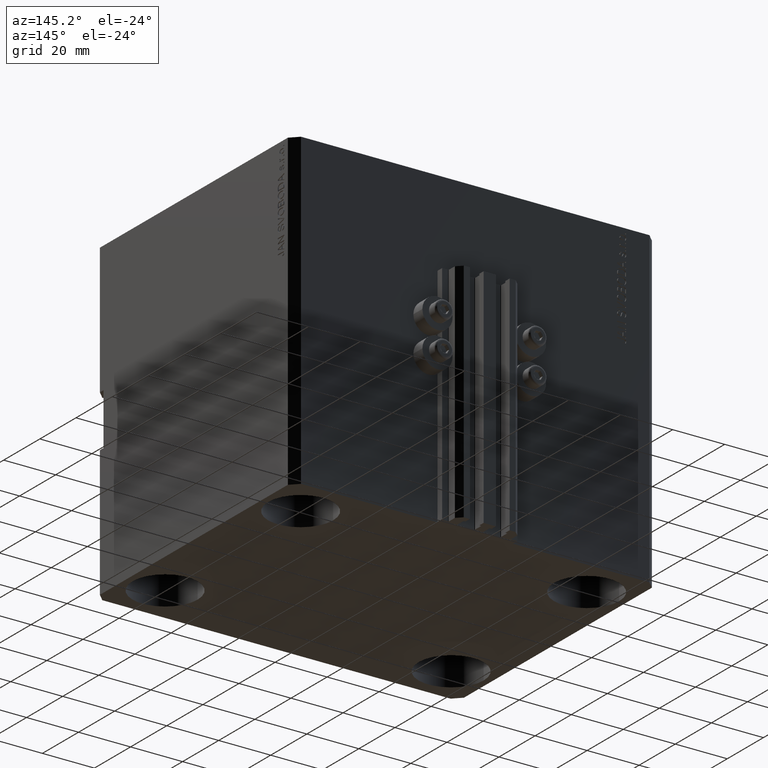
[diagram: clean part render]
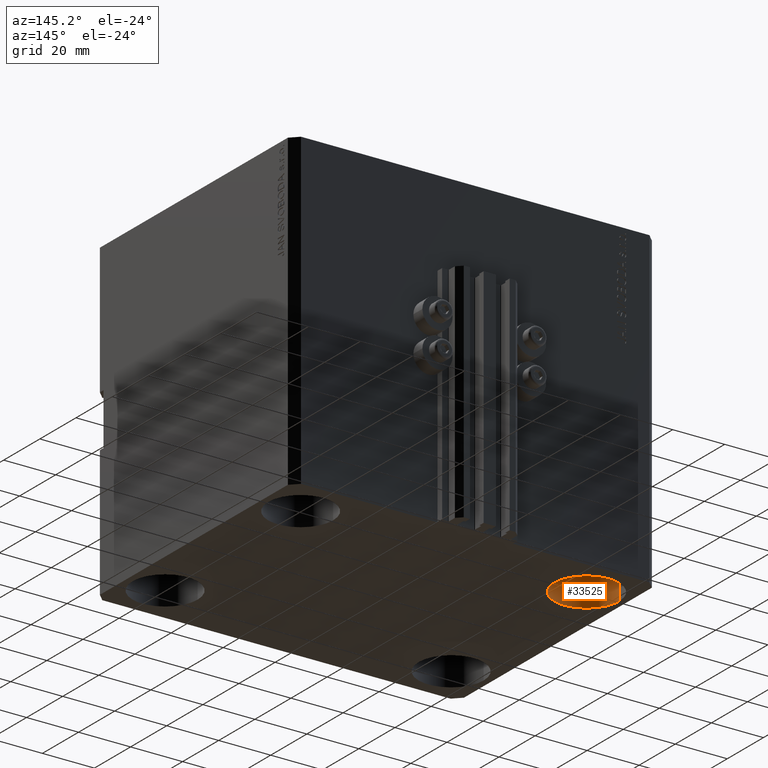
[diagram: same view with one face highlighted and labeled with its STEP entity id]
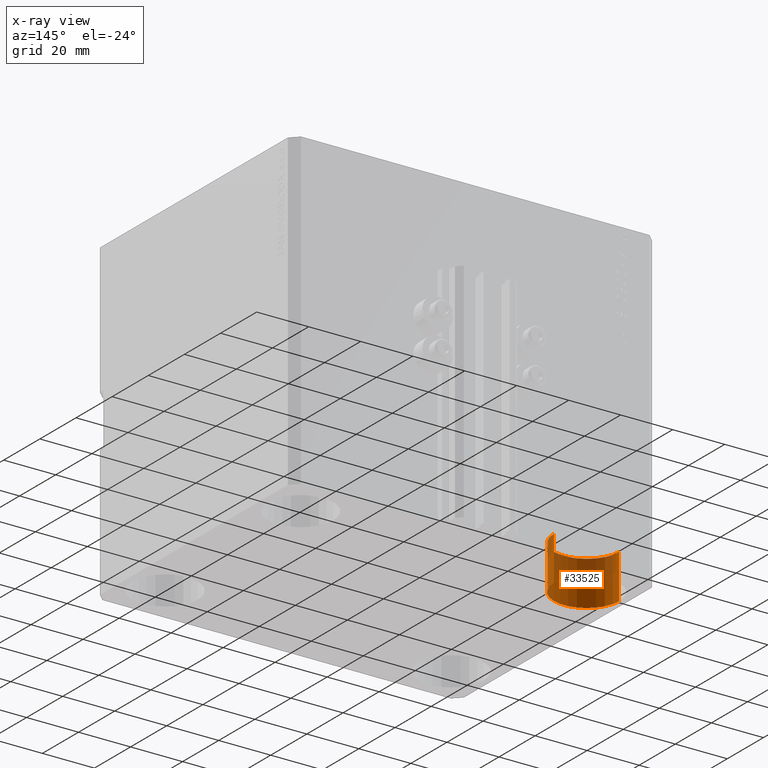
[diagram: x-ray of the same camera — body ghosted, the highlighted face saturated]
A machine part, auxiliary view. The second image highlights one B-rep face of the part: STEP entity #33525.
The next image is the same camera in x-ray: the body ghosted, the highlighted face saturated — about 34% of this face is hidden behind the body in this view.
In plain terms, the highlighted cylindrical surface (partial cylindrical patch) has radius 12.5 mm, axis along (-0, -0, -1).
Its self-contained STEP definition (entity closure, byte-faithful):
#128 = CARTESIAN_POINT ( 'NONE',  ( -42.50000000000000711, 37.49999999999999289, -120.0000000000000000 ) ) ;
#1351 = CARTESIAN_POINT ( 'NONE',  ( -67.50000000000000000, 37.49999999999999289, -103.0000000000000000 ) ) ;
#2304 = AXIS2_PLACEMENT_3D ( 'NONE', #19712, #42144, #38694 ) ;
#3769 = LINE ( 'NONE', #18823, #23483 ) ;
#4062 = CARTESIAN_POINT ( 'NONE',  ( -55.00000000000000711, 37.49999999999999289, -103.0000000000000000 ) ) ;
#5069 = DIRECTION ( 'NONE',  ( -0.000000000000000000, -0.000000000000000000, -1.000000000000000000 ) ) ;
#7281 = DIRECTION ( 'NONE',  ( -1.000000000000000000, 0.000000000000000000, 0.000000000000000000 ) ) ;
#8844 = VERTEX_POINT ( 'NONE', #45866 ) ;
#11469 = VERTEX_POINT ( 'NONE', #128 ) ;
#11698 = EDGE_CURVE ( 'NONE', #20502, #8844, #19628, .T. ) ;
#15119 = DIRECTION ( 'NONE',  ( -0.000000000000000000, -0.000000000000000000, -1.000000000000000000 ) ) ;
#15229 = ORIENTED_EDGE ( 'NONE', *, *, #31816, .F. ) ;
#15666 = CARTESIAN_POINT ( 'NONE',  ( -67.50000000000000000, 37.49999999999999289, -103.0000000000000000 ) ) ;
#16077 = ORIENTED_EDGE ( 'NONE', *, *, #20738, .T. ) ;
#17329 = EDGE_LOOP ( 'NONE', ( #37338, #16077, #15229, #42633 ) ) ;
#17886 = CARTESIAN_POINT ( 'NONE',  ( -55.00000000000000711, 37.49999999999999289, -120.0000000000000000 ) ) ;
#18823 = CARTESIAN_POINT ( 'NONE',  ( -42.50000000000000711, 37.49999999999999289, -103.0000000000000000 ) ) ;
#19628 = LINE ( 'NONE', #15666, #21724 ) ;
#19712 = CARTESIAN_POINT ( 'NONE',  ( -55.00000000000000711, 37.49999999999999289, -103.0000000000000000 ) ) ;
#20502 = VERTEX_POINT ( 'NONE', #1351 ) ;
#20738 = EDGE_CURVE ( 'NONE', #29782, #11469, #3769, .T. ) ;
#21724 = VECTOR ( 'NONE', #5069, 1000.000000000000000 ) ;
#23483 = VECTOR ( 'NONE', #15119, 1000.000000000000000 ) ;
#25152 = CIRCLE ( 'NONE', #2304, 12.49999999999999645 ) ;
#25774 = FACE_OUTER_BOUND ( 'NONE', #17329, .T. ) ;
#26072 = CIRCLE ( 'NONE', #30018, 12.49999999999999645 ) ;
#26696 = EDGE_CURVE ( 'NONE', #20502, #29782, #25152, .T. ) ;
#28267 = DIRECTION ( 'NONE',  ( -0.000000000000000000, -0.000000000000000000, 1.000000000000000000 ) ) ;
#29313 = AXIS2_PLACEMENT_3D ( 'NONE', #4062, #34163, #7281 ) ;
#29782 = VERTEX_POINT ( 'NONE', #33651 ) ;
#30018 = AXIS2_PLACEMENT_3D ( 'NONE', #17886, #28267, #47490 ) ;
#30703 = CYLINDRICAL_SURFACE ( 'NONE', #29313, 12.49999999999999645 ) ;
#31816 = EDGE_CURVE ( 'NONE', #8844, #11469, #26072, .T. ) ;
#33525 = ADVANCED_FACE ( 'NONE', ( #25774 ), #30703, .F. ) ;
#33651 = CARTESIAN_POINT ( 'NONE',  ( -42.50000000000000711, 37.49999999999999289, -103.0000000000000000 ) ) ;
#34163 = DIRECTION ( 'NONE',  ( -0.000000000000000000, -0.000000000000000000, -1.000000000000000000 ) ) ;
#37338 = ORIENTED_EDGE ( 'NONE', *, *, #26696, .T. ) ;
#38694 = DIRECTION ( 'NONE',  ( 1.000000000000000000, 0.000000000000000000, 0.000000000000000000 ) ) ;
#42144 = DIRECTION ( 'NONE',  ( -0.000000000000000000, -0.000000000000000000, 1.000000000000000000 ) ) ;
#42633 = ORIENTED_EDGE ( 'NONE', *, *, #11698, .F. ) ;
#45866 = CARTESIAN_POINT ( 'NONE',  ( -67.50000000000000000, 37.49999999999999289, -120.0000000000000000 ) ) ;
#47490 = DIRECTION ( 'NONE',  ( 1.000000000000000000, 0.000000000000000000, 0.000000000000000000 ) ) ;